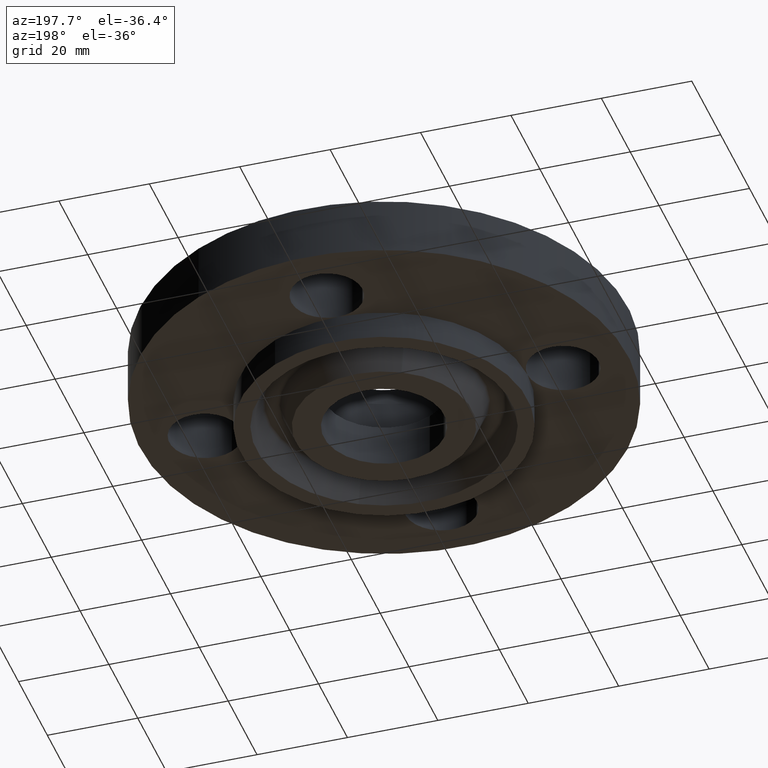
[diagram: clean part render]
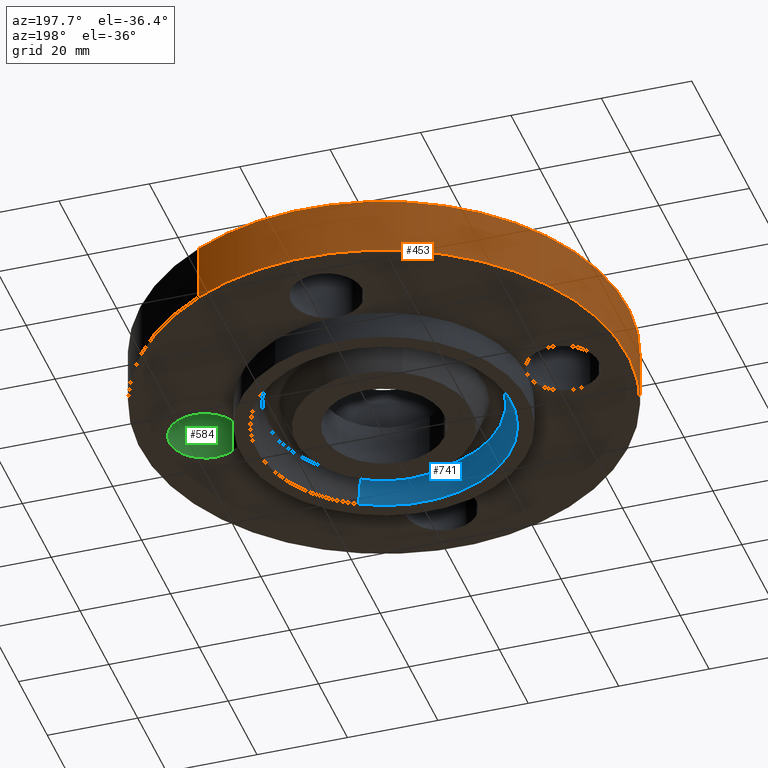
[diagram: same view with three faces highlighted in distinct colors, each labeled with its STEP entity id]
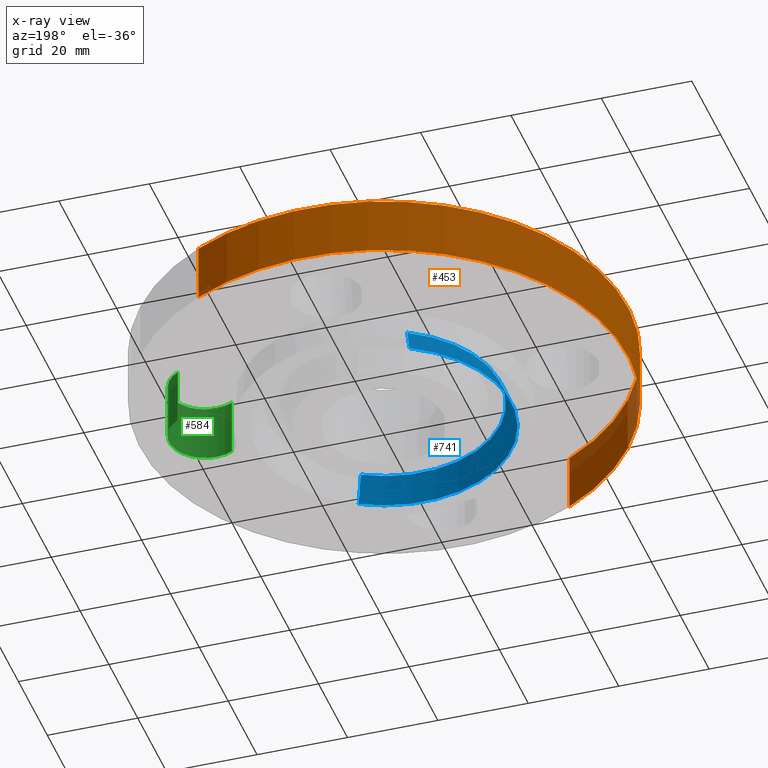
[diagram: x-ray of the same camera — body ghosted, the three highlighted faces saturated]
A machine part, auxiliary view with three faces highlighted in distinct colors.
The next image is the same camera in x-ray (body ghosted, the three faces saturated) — at least one of them is partly hidden behind the body in this view.
Their STEP definitions:

[orange] entity #453 — the highlighted cylindrical surface (partial cylindrical patch) has radius 53.975 mm, axis along (0, 0, -1).
#310=AXIS2_PLACEMENT_3D('Circle Axis2P3D',#308,#309,$) ;
#426=AXIS2_PLACEMENT_3D('Cylinder Axis2P3D',#423,#424,#425) ;
#437=AXIS2_PLACEMENT_3D('Circle Axis2P3D',#435,#436,$) ;
#308=CARTESIAN_POINT('Axis2P3D Location',(0.,0.,0.)) ;
#312=CARTESIAN_POINT('Vertex',(-1.01877926954,-1.86486294402,1.39870617276E-016)) ;
#314=CARTESIAN_POINT('Vertex',(1.01877926954,1.86486294402,1.39870617276E-016)) ;
#423=CARTESIAN_POINT('Axis2P3D Location',(0.,0.,0.185000000001)) ;
#428=CARTESIAN_POINT('Line Origine',(-1.01877926954,-1.86486294402,0.250000000001)) ;
#432=CARTESIAN_POINT('Vertex',(-1.01877926954,-1.86486294402,0.500000000002)) ;
#435=CARTESIAN_POINT('Axis2P3D Location',(0.,0.,0.500000000002)) ;
#439=CARTESIAN_POINT('Vertex',(1.01877926954,1.86486294402,0.500000000002)) ;
#442=CARTESIAN_POINT('Line Origine',(1.01877926954,1.86486294402,0.250000000001)) ;
#309=DIRECTION('Axis2P3D Direction',(0.,0.,-0.0393700787402)) ;
#424=DIRECTION('Axis2P3D Direction',(0.,0.,-0.0393700787402)) ;
#425=DIRECTION('Axis2P3D XDirection',(0.0188750212049,0.0345504945626,0.)) ;
#429=DIRECTION('Vector Direction',(0.,0.,-0.0393700787402)) ;
#436=DIRECTION('Axis2P3D Direction',(0.,0.,-0.0393700787402)) ;
#443=DIRECTION('Vector Direction',(0.,0.,-0.0393700787402)) ;
#430=VECTOR('Line Direction',#429,0.0393700787402) ;
#444=VECTOR('Line Direction',#443,0.0393700787402) ;
#448=ORIENTED_EDGE('',*,*,#316,.F.) ;
#449=ORIENTED_EDGE('',*,*,#434,.T.) ;
#450=ORIENTED_EDGE('',*,*,#441,.T.) ;
#451=ORIENTED_EDGE('',*,*,#446,.F.) ;
#453=ADVANCED_FACE('PartBody',(#452),#427,.T.) ;
#311=CIRCLE('generated circle',#310,2.12500000001) ;
#438=CIRCLE('generated circle',#437,2.12500000001) ;
#427=CYLINDRICAL_SURFACE('generated cylinder',#426,2.12500000001) ;
#316=EDGE_CURVE('',#313,#315,#311,.T.) ;
#434=EDGE_CURVE('',#313,#433,#431,.F.) ;
#441=EDGE_CURVE('',#433,#440,#438,.T.) ;
#446=EDGE_CURVE('',#315,#440,#445,.F.) ;
#447=EDGE_LOOP('',(#448,#449,#450,#451)) ;
#452=FACE_OUTER_BOUND('',#447,.T.) ;
#431=LINE('Line',#428,#430) ;
#445=LINE('Line',#442,#444) ;
#313=VERTEX_POINT('',#312) ;
#315=VERTEX_POINT('',#314) ;
#433=VERTEX_POINT('',#432) ;
#440=VERTEX_POINT('',#439) ;

[blue] entity #741 — the highlighted conical surface has half-angle 23 deg.
#211=AXIS2_PLACEMENT_3D('Circle Axis2P3D',#209,#210,$) ;
#702=AXIS2_PLACEMENT_3D('Cone Axis2P3D',#699,#700,#701) ;
#732=AXIS2_PLACEMENT_3D('Circle Axis2P3D',#730,#731,$) ;
#209=CARTESIAN_POINT('Axis2P3D Location',(1.04902962957E-016,3.49676543189E-016,-0.250000000001)) ;
#213=CARTESIAN_POINT('Vertex',(0.531862706891,-0.973568154601,-0.250000000001)) ;
#215=CARTESIAN_POINT('Vertex',(-0.531862706891,0.973568154601,-0.250000000001)) ;
#699=CARTESIAN_POINT('Axis2P3D Location',(0.,0.,-0.0190396522348)) ;
#704=CARTESIAN_POINT('Line Origine',(0.508362021804,-0.930550439096,-0.134519826118)) ;
#708=CARTESIAN_POINT('Vertex',(0.484861336716,-0.887532723592,-0.0190396522348)) ;
#715=CARTESIAN_POINT('Vertex',(-0.484861336716,0.887532723592,-0.0190396522348)) ;
#718=CARTESIAN_POINT('Line Origine',(-0.508362021804,0.930550439096,-0.134519826118)) ;
#730=CARTESIAN_POINT('Axis2P3D Location',(0.,0.,-0.0190396522348)) ;
#210=DIRECTION('Axis2P3D Direction',(0.,0.,-0.0393700787402)) ;
#700=DIRECTION('Axis2P3D Direction',(-0.,-0.,-0.0393700787402)) ;
#701=DIRECTION('Axis2P3D XDirection',(0.0188750212049,-0.0345504945626,0.)) ;
#705=DIRECTION('Vector Direction',(0.00737505833565,-0.0134999537303,-0.0362403485611)) ;
#719=DIRECTION('Vector Direction',(-0.00737505833565,0.0134999537303,-0.0362403485611)) ;
#731=DIRECTION('Axis2P3D Direction',(0.,0.,-0.0393700787402)) ;
#706=VECTOR('Line Direction',#705,0.0393700787402) ;
#720=VECTOR('Line Direction',#719,0.0393700787402) ;
#736=ORIENTED_EDGE('',*,*,#217,.T.) ;
#737=ORIENTED_EDGE('',*,*,#722,.T.) ;
#738=ORIENTED_EDGE('',*,*,#734,.T.) ;
#739=ORIENTED_EDGE('',*,*,#710,.F.) ;
#741=ADVANCED_FACE('PartBody',(#740),#703,.F.) ;
#212=CIRCLE('generated circle',#211,1.109375) ;
#733=CIRCLE('generated circle',#732,1.01133814883) ;
#703=CONICAL_SURFACE('Cone',#702,1.01133814883,0.401425727959) ;
#217=EDGE_CURVE('',#214,#216,#212,.T.) ;
#710=EDGE_CURVE('',#214,#709,#707,.F.) ;
#722=EDGE_CURVE('',#216,#716,#721,.F.) ;
#734=EDGE_CURVE('',#716,#709,#733,.F.) ;
#735=EDGE_LOOP('',(#736,#737,#738,#739)) ;
#740=FACE_OUTER_BOUND('',#735,.T.) ;
#707=LINE('Line',#704,#706) ;
#721=LINE('Line',#718,#720) ;
#214=VERTEX_POINT('',#213) ;
#216=VERTEX_POINT('',#215) ;
#709=VERTEX_POINT('',#708) ;
#716=VERTEX_POINT('',#715) ;

[green] entity #584 — the highlighted cylindrical surface (partial cylindrical patch) has radius 7.874 mm, axis along (0, -0, -1).
#354=AXIS2_PLACEMENT_3D('Circle Axis2P3D',#352,#353,$) ;
#557=AXIS2_PLACEMENT_3D('Cylinder Axis2P3D',#554,#555,#556) ;
#575=AXIS2_PLACEMENT_3D('Circle Axis2P3D',#573,#574,$) ;
#349=CARTESIAN_POINT('Vertex',(1.41137808304,-0.272050594187,0.)) ;
#352=CARTESIAN_POINT('Axis2P3D Location',(1.56000000001,-1.39870617276E-016,0.)) ;
#356=CARTESIAN_POINT('Vertex',(1.70862191697,0.272050594187,0.)) ;
#554=CARTESIAN_POINT('Axis2P3D Location',(1.56000000001,-1.84218784217E-016,0.496062992128)) ;
#559=CARTESIAN_POINT('Line Origine',(1.70862191697,0.272050594187,0.250000000001)) ;
#563=CARTESIAN_POINT('Vertex',(1.70862191697,0.272050594187,0.500000000002)) ;
#566=CARTESIAN_POINT('Line Origine',(1.41137808304,-0.272050594187,0.250000000001)) ;
#570=CARTESIAN_POINT('Vertex',(1.41137808304,-0.272050594187,0.500000000002)) ;
#573=CARTESIAN_POINT('Axis2P3D Location',(1.56000000001,-1.84218784217E-016,0.500000000002)) ;
#353=DIRECTION('Axis2P3D Direction',(0.,0.,-0.0393700787402)) ;
#555=DIRECTION('Axis2P3D Direction',(0.,-0.,-0.0393700787402)) ;
#556=DIRECTION('Axis2P3D XDirection',(-0.0188750212049,-0.0345504945626,0.)) ;
#560=DIRECTION('Vector Direction',(0.,0.,-0.0393700787402)) ;
#567=DIRECTION('Vector Direction',(0.,0.,-0.0393700787402)) ;
#574=DIRECTION('Axis2P3D Direction',(0.,-0.,-0.0393700787402)) ;
#561=VECTOR('Line Direction',#560,0.0393700787402) ;
#568=VECTOR('Line Direction',#567,0.0393700787402) ;
#579=ORIENTED_EDGE('',*,*,#565,.F.) ;
#580=ORIENTED_EDGE('',*,*,#358,.T.) ;
#581=ORIENTED_EDGE('',*,*,#572,.T.) ;
#582=ORIENTED_EDGE('',*,*,#577,.F.) ;
#584=ADVANCED_FACE('PartBody',(#583),#558,.F.) ;
#355=CIRCLE('generated circle',#354,0.310000000001) ;
#576=CIRCLE('generated circle',#575,0.310000000001) ;
#558=CYLINDRICAL_SURFACE('generated cylinder',#557,0.310000000001) ;
#358=EDGE_CURVE('',#357,#350,#355,.T.) ;
#565=EDGE_CURVE('',#357,#564,#562,.F.) ;
#572=EDGE_CURVE('',#350,#571,#569,.F.) ;
#577=EDGE_CURVE('',#564,#571,#576,.T.) ;
#578=EDGE_LOOP('',(#579,#580,#581,#582)) ;
#583=FACE_OUTER_BOUND('',#578,.T.) ;
#562=LINE('Line',#559,#561) ;
#569=LINE('Line',#566,#568) ;
#350=VERTEX_POINT('',#349) ;
#357=VERTEX_POINT('',#356) ;
#564=VERTEX_POINT('',#563) ;
#571=VERTEX_POINT('',#570) ;